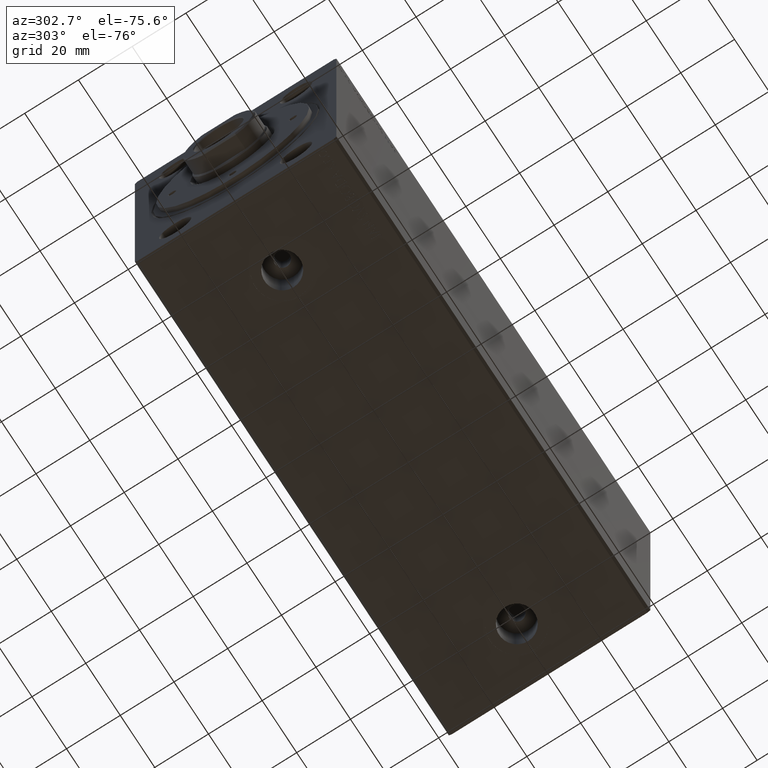
[diagram: clean part render]
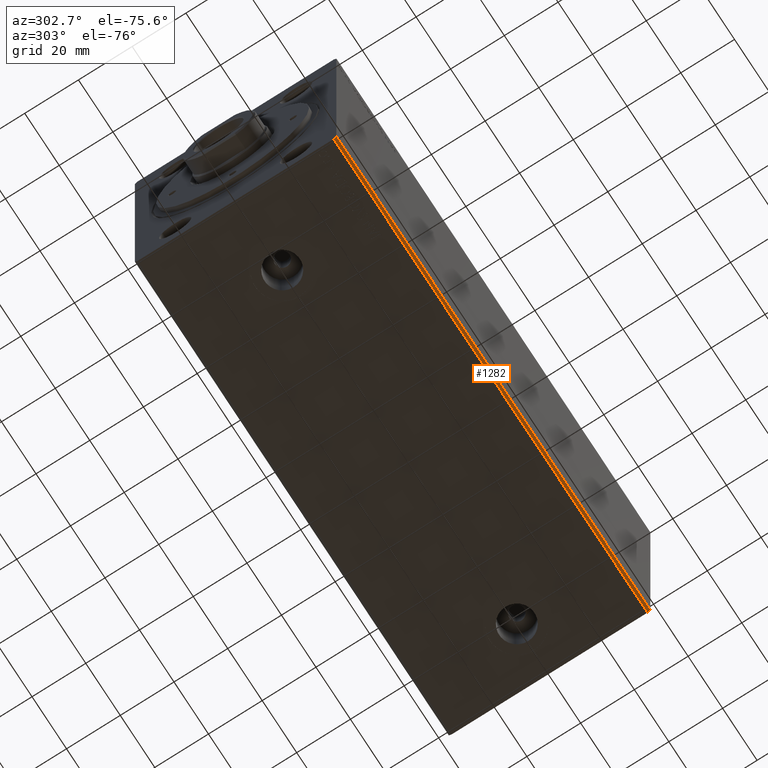
[diagram: same view with one face highlighted and labeled with its STEP entity id]
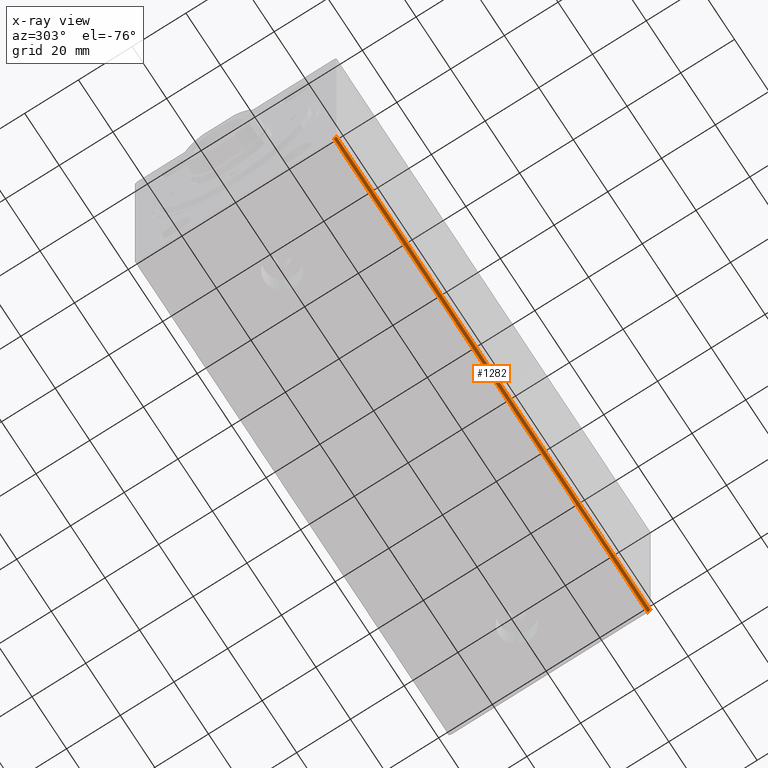
[diagram: x-ray of the same camera — body ghosted, the highlighted face saturated]
A machine part, auxiliary view. The second image highlights one B-rep face of the part: STEP entity #1282.
The next image is the same camera in x-ray: the body ghosted, the highlighted face saturated — about 0% of this face is hidden behind the body in this view.
In plain terms, the highlighted planar face has unit normal (0, 0.7071, 0.7071).
Its self-contained STEP definition (entity closure, byte-faithful):
#27 = VECTOR ( 'NONE', #3020, 1000.000000000000114 ) ;
#1282 = ADVANCED_FACE ( 'NONE', ( #14566 ), #27471, .F. ) ;
#2795 = CARTESIAN_POINT ( 'NONE',  ( 0.000000000000000000, -37.50000000000001421, -49.00000000000000000 ) ) ;
#3020 = DIRECTION ( 'NONE',  ( 0.000000000000000000, 0.7071067811865500152, -0.7071067811865451302 ) ) ;
#5633 = DIRECTION ( 'NONE',  ( -1.000000000000000000, -0.000000000000000000, -0.000000000000000000 ) ) ;
#7464 = DIRECTION ( 'NONE',  ( -0.000000000000000000, 0.7071067811865451302, 0.7071067811865500152 ) ) ;
#8592 = VERTEX_POINT ( 'NONE', #31015 ) ;
#9212 = VECTOR ( 'NONE', #26998, 1000.000000000000000 ) ;
#9629 = LINE ( 'NONE', #22968, #15454 ) ;
#12555 = LINE ( 'NONE', #13438, #34891 ) ;
#13308 = ORIENTED_EDGE ( 'NONE', *, *, #39426, .F. ) ;
#13438 = CARTESIAN_POINT ( 'NONE',  ( 182.0000000000000000, -37.50000000000001421, -49.00000000000000000 ) ) ;
#14566 = FACE_OUTER_BOUND ( 'NONE', #38677, .T. ) ;
#15454 = VECTOR ( 'NONE', #5633, 1000.000000000000000 ) ;
#16770 = VERTEX_POINT ( 'NONE', #27412 ) ;
#17787 = CARTESIAN_POINT ( 'NONE',  ( 182.0000000000000000, -37.50000000000001421, -49.00000000000000000 ) ) ;
#21307 = CARTESIAN_POINT ( 'NONE',  ( 182.0000000000000000, -36.50000000000000711, -50.00000000000000000 ) ) ;
#22968 = CARTESIAN_POINT ( 'NONE',  ( 182.0000000000000000, -36.50000000000000711, -50.00000000000000000 ) ) ;
#23243 = VERTEX_POINT ( 'NONE', #21307 ) ;
#23864 = CARTESIAN_POINT ( 'NONE',  ( 182.0000000000000000, -37.50000000000001421, -49.00000000000000000 ) ) ;
#26295 = ORIENTED_EDGE ( 'NONE', *, *, #33373, .T. ) ;
#26385 = LINE ( 'NONE', #2795, #27 ) ;
#26998 = DIRECTION ( 'NONE',  ( -1.000000000000000000, -0.000000000000000000, -0.000000000000000000 ) ) ;
#27412 = CARTESIAN_POINT ( 'NONE',  ( 0.000000000000000000, -36.50000000000000711, -50.00000000000000000 ) ) ;
#27471 = PLANE ( 'NONE',  #39274 ) ;
#28037 = LINE ( 'NONE', #23864, #9212 ) ;
#28523 = EDGE_CURVE ( 'NONE', #23243, #16770, #9629, .T. ) ;
#30604 = CARTESIAN_POINT ( 'NONE',  ( 182.0000000000000000, -37.50000000000001421, -49.00000000000000000 ) ) ;
#30902 = VERTEX_POINT ( 'NONE', #17787 ) ;
#31015 = CARTESIAN_POINT ( 'NONE',  ( 0.000000000000000000, -37.50000000000001421, -49.00000000000000000 ) ) ;
#31042 = ORIENTED_EDGE ( 'NONE', *, *, #35893, .T. ) ;
#33373 = EDGE_CURVE ( 'NONE', #30902, #8592, #28037, .T. ) ;
#34891 = VECTOR ( 'NONE', #40580, 1000.000000000000114 ) ;
#35893 = EDGE_CURVE ( 'NONE', #8592, #16770, #26385, .T. ) ;
#37492 = DIRECTION ( 'NONE',  ( 0.000000000000000000, -0.7071067811865500152, 0.7071067811865451302 ) ) ;
#38677 = EDGE_LOOP ( 'NONE', ( #31042, #41725, #13308, #26295 ) ) ;
#39274 = AXIS2_PLACEMENT_3D ( 'NONE', #30604, #7464, #37492 ) ;
#39426 = EDGE_CURVE ( 'NONE', #30902, #23243, #12555, .T. ) ;
#40580 = DIRECTION ( 'NONE',  ( 0.000000000000000000, 0.7071067811865500152, -0.7071067811865451302 ) ) ;
#41725 = ORIENTED_EDGE ( 'NONE', *, *, #28523, .F. ) ;